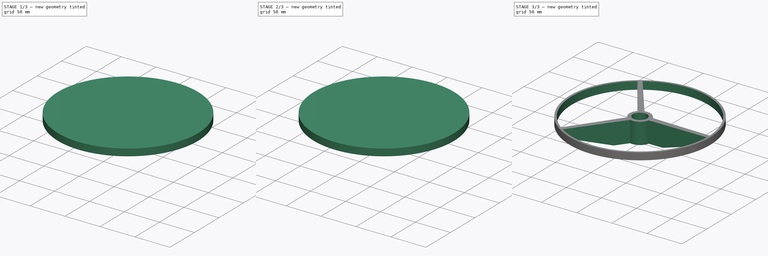
[diagram: build sequence overview — one tinted view per stage of 3, left to right]
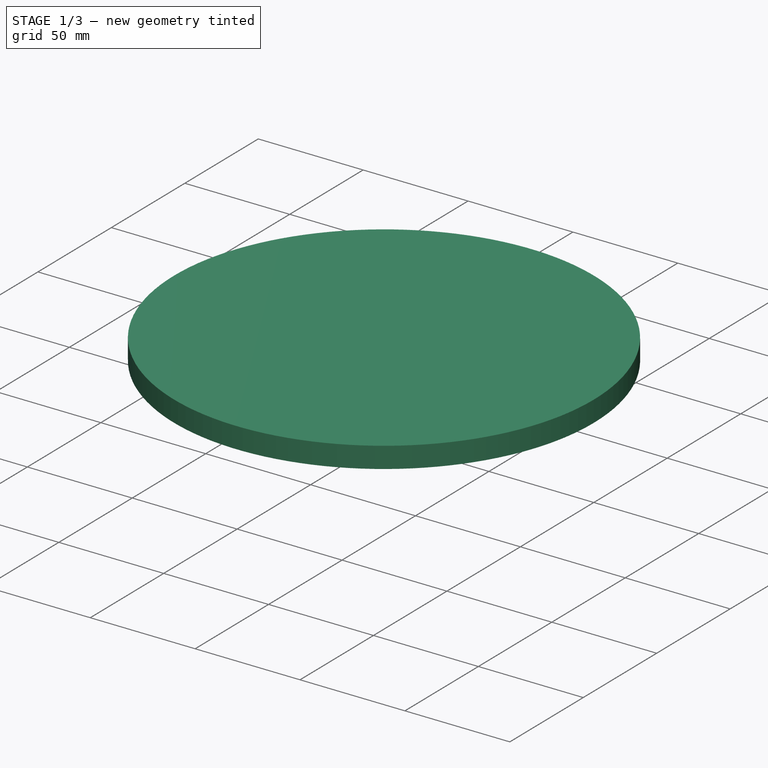
[diagram: stage 1 of 3 — iso view after this stage's code; geometry added in this stage tinted green]
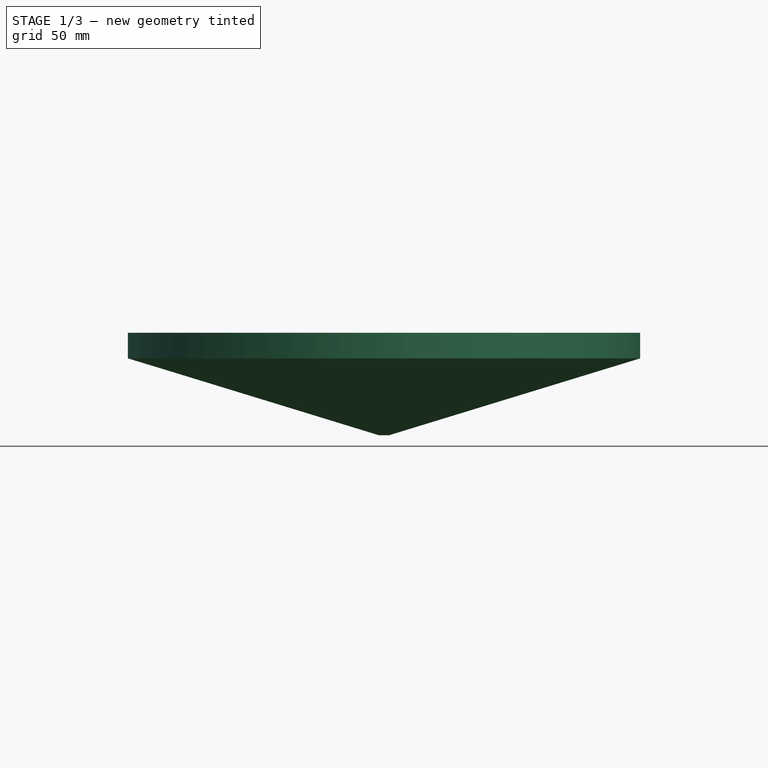
[diagram: stage 1 of 3 — front view after this stage's code; geometry added in this stage tinted green]
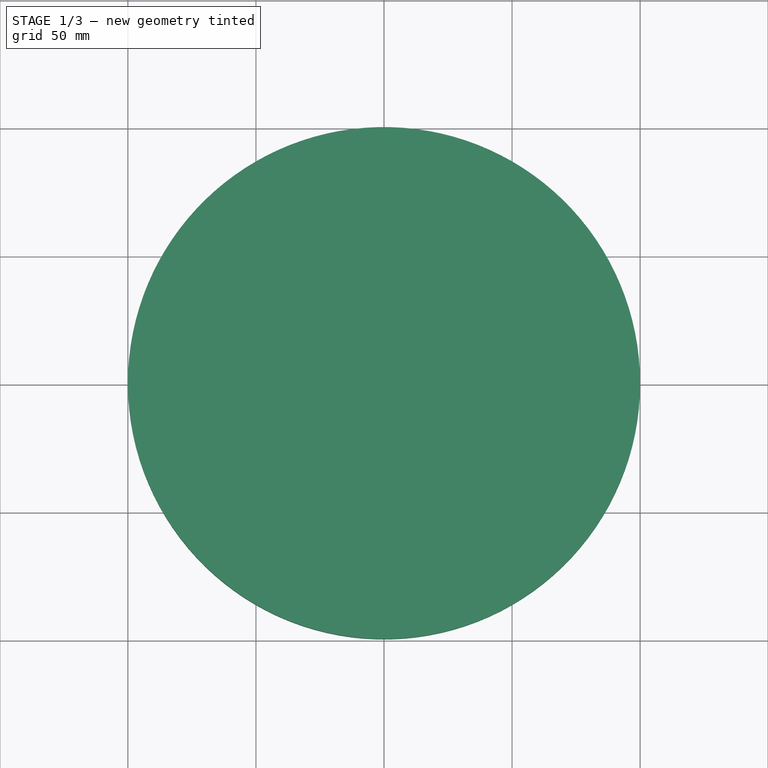
[diagram: stage 1 of 3 — top view after this stage's code; geometry added in this stage tinted green]
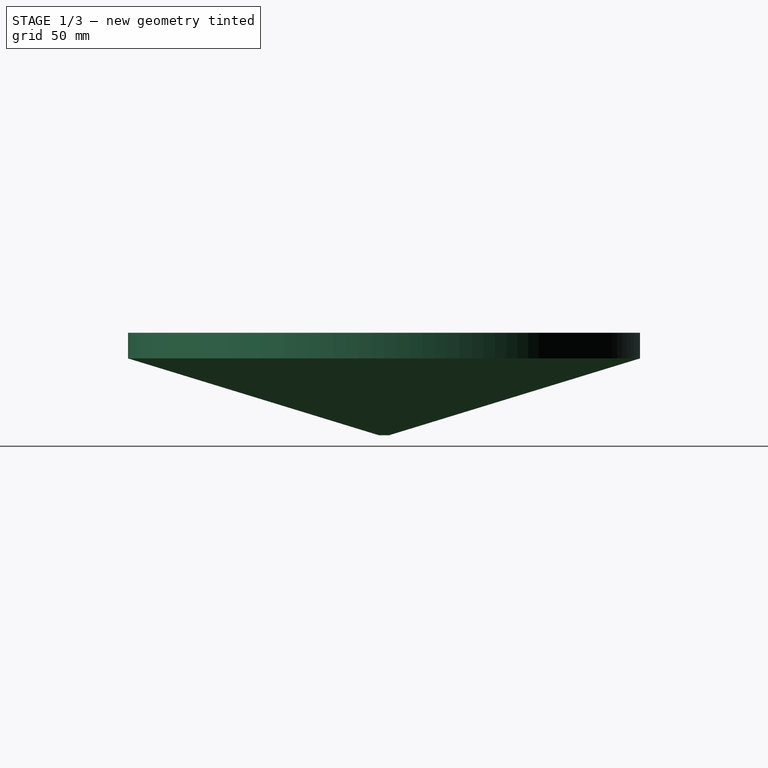
[diagram: stage 1 of 3 — right view after this stage's code; geometry added in this stage tinted green]
FCSTD DOCUMENT  (FreeCAD 0.19R23074 (Git))
Label: base2
License: All rights reserved
LicenseURL: http://en.wikipedia.org/wiki/All_rights_reserved
objects: Sketcher::SketchObject×1, PartDesign::Pad×1, PartDesign::Body×1, Part::Cylinder×1, Part::Cone×1, Part::MultiFuse×1, Part::MultiCommon×1
note: 8 computed .brp shape members not serialized (recipe doc carries the construction recipe); baked Part::Feature solids carry a one-line shape summary decoded from their .brp

FEATURE [PartDesign::Body] Body
  Group = -> [Sketch,Pad]
  Origin = -> Origin
  Tip = -> Pad
FEATURE [Part::Cylinder] Cylinder
  Angle = 360
  AttacherType = Attacher::AttachEngine3D
  Height = 10
  Radius = 100
FEATURE [Part::Cone] Cone
  Angle = 360
  AttacherType = Attacher::AttachEngine3D
  Height = 30
  Placement = pos=(0,0,-30) rot=(0,0.668965,0.743294;0rad)
  Radius1 = 2
  Radius2 = 100
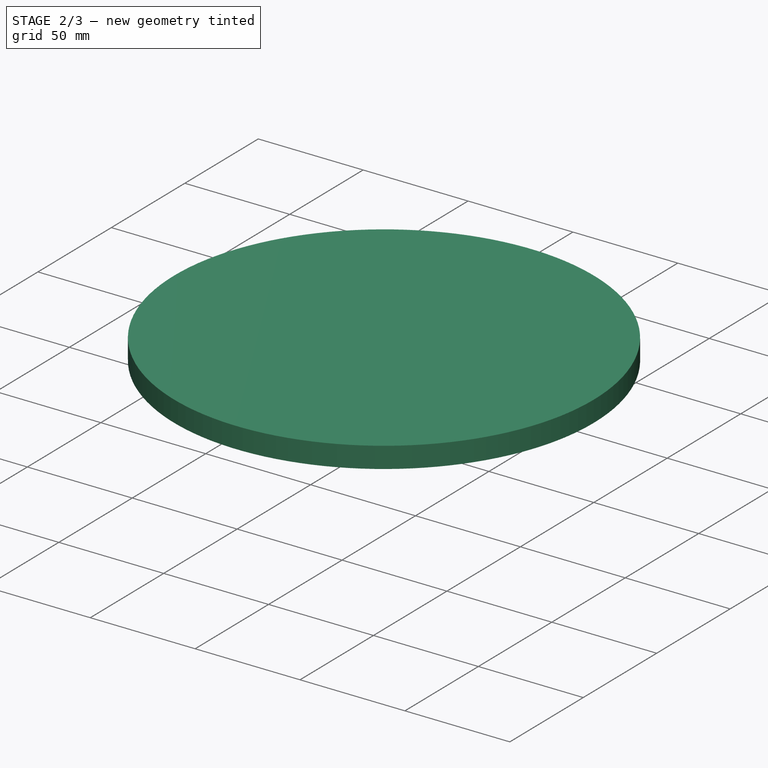
[diagram: stage 2 of 3 — iso view after this stage's code; geometry added in this stage tinted green]
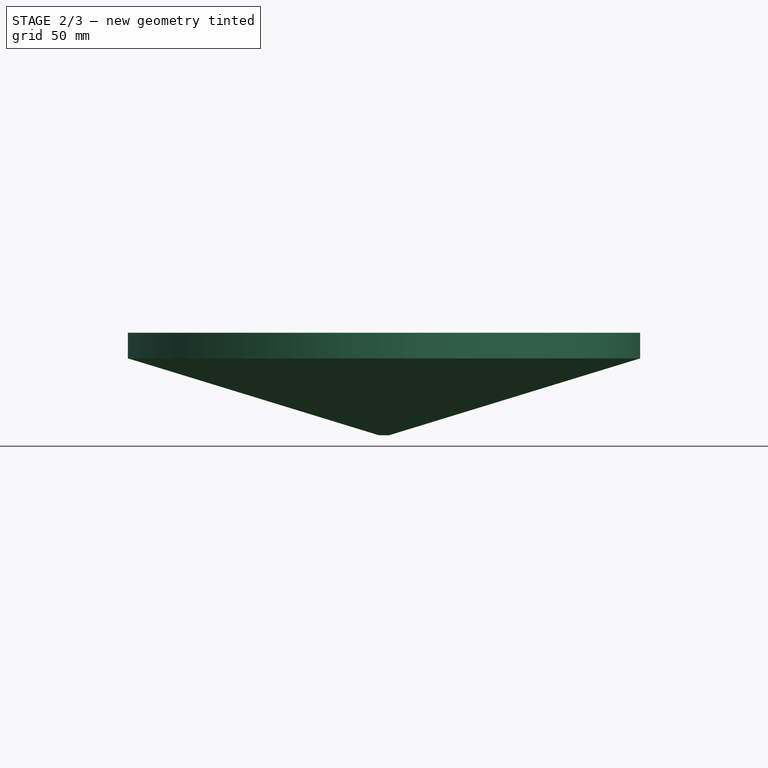
[diagram: stage 2 of 3 — front view after this stage's code; geometry added in this stage tinted green]
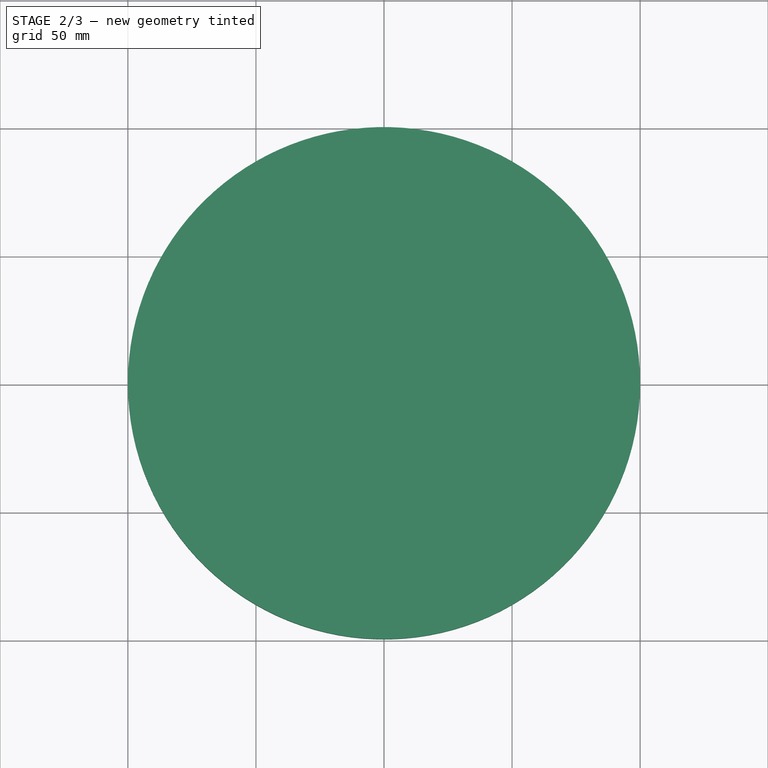
[diagram: stage 2 of 3 — top view after this stage's code; geometry added in this stage tinted green]
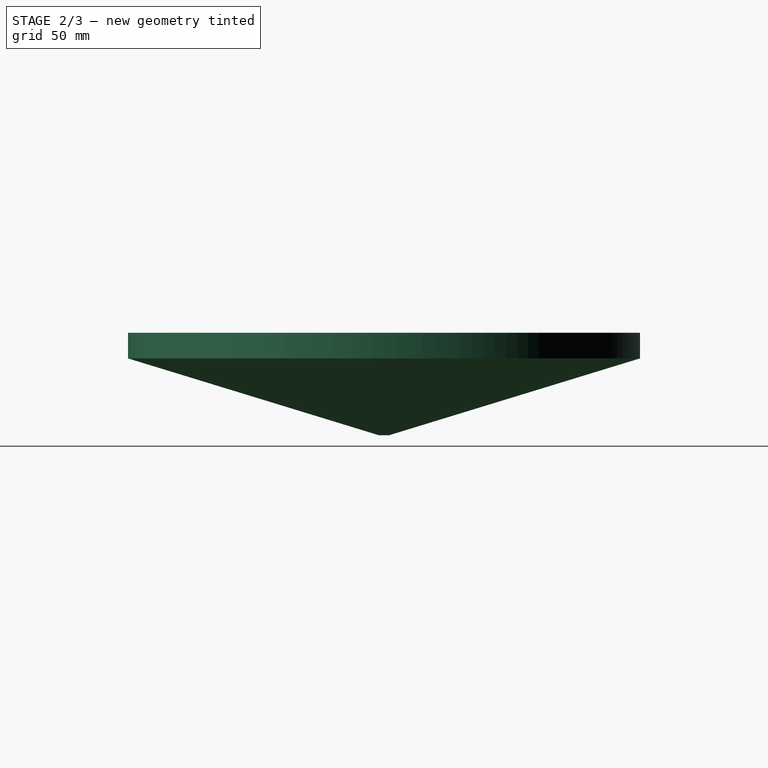
[diagram: stage 2 of 3 — right view after this stage's code; geometry added in this stage tinted green]
FEATURE [Part::MultiFuse] Fusion
  Placement = pos=(0,0,20) rot=(0,0,1;0rad)
  Shapes = -> [Cylinder,Cone]
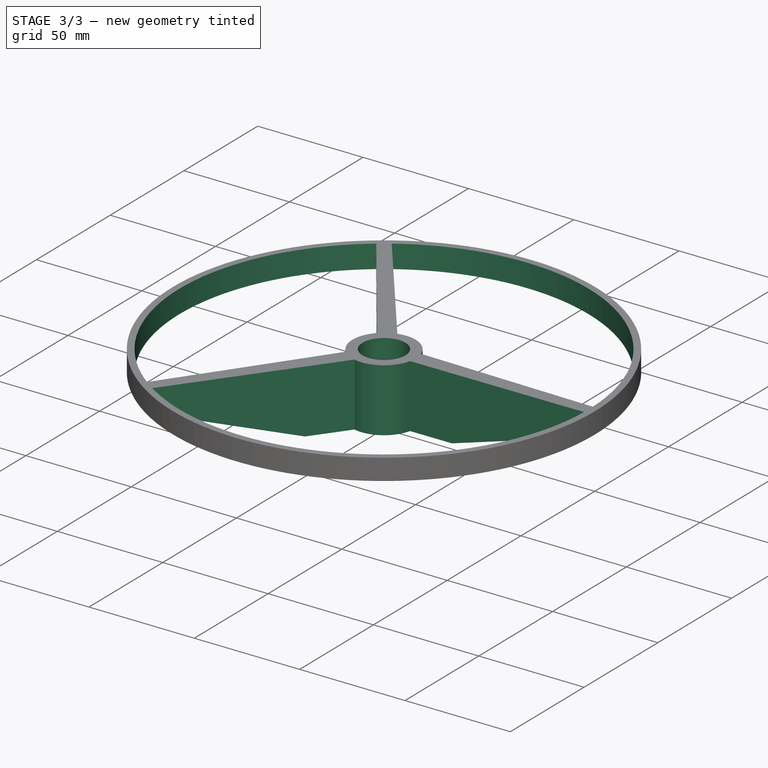
[diagram: stage 3 of 3 — iso view after this stage's code; geometry added in this stage tinted green]
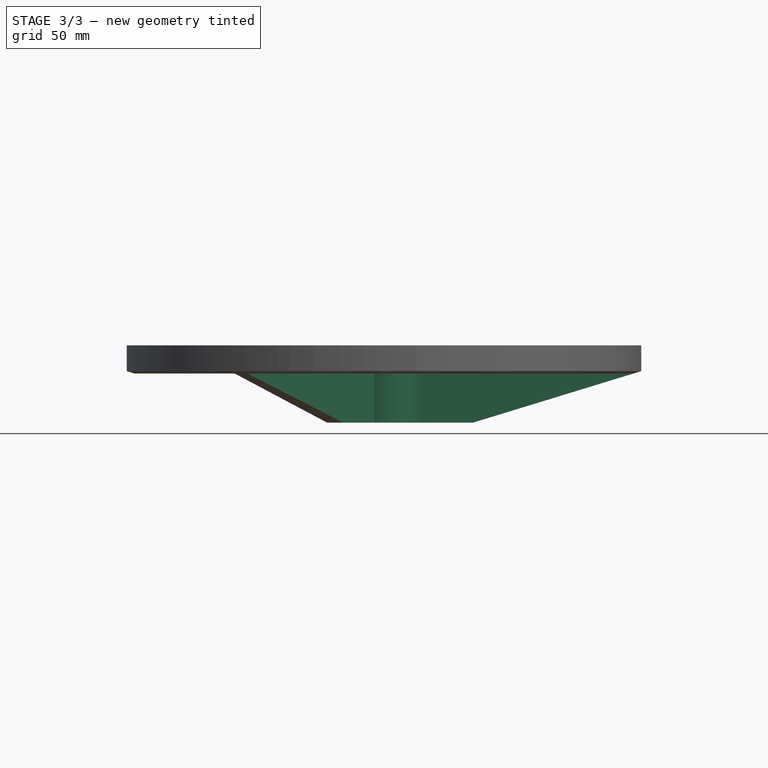
[diagram: stage 3 of 3 — front view after this stage's code; geometry added in this stage tinted green]
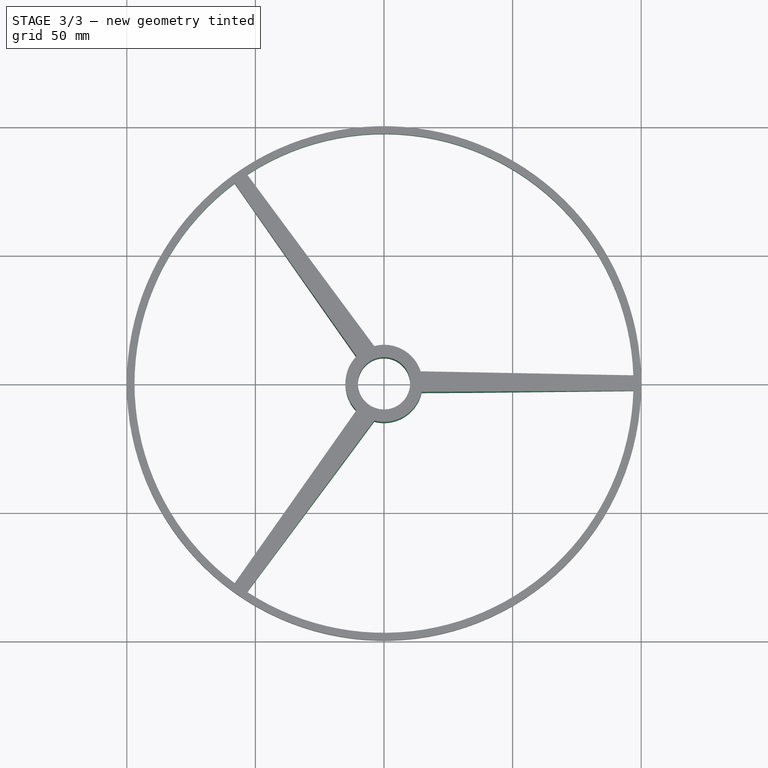
[diagram: stage 3 of 3 — top view after this stage's code; geometry added in this stage tinted green]
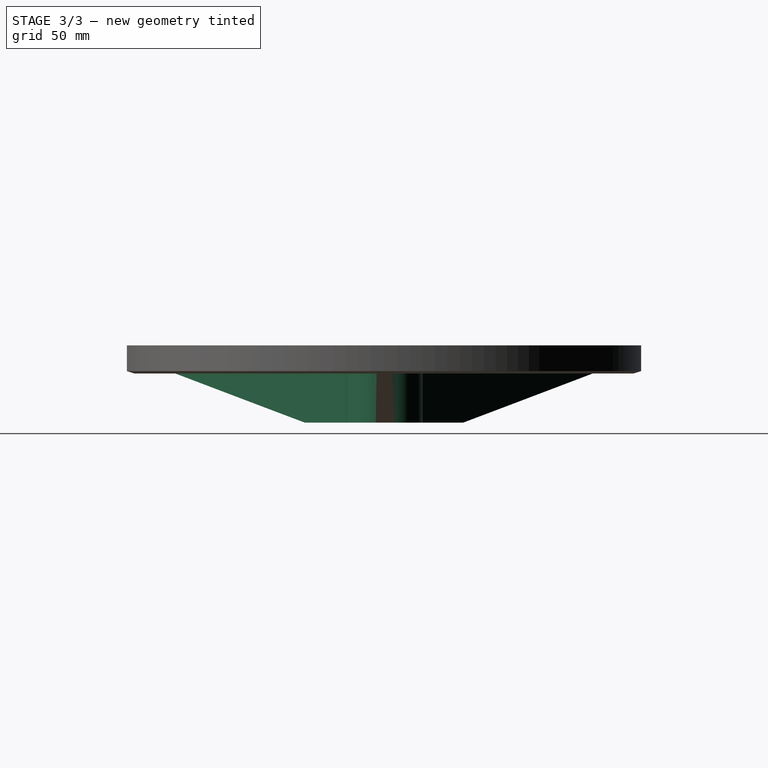
[diagram: stage 3 of 3 — right view after this stage's code; geometry added in this stage tinted green]
FEATURE [Sketcher::SketchObject] Sketch
  MapMode = 5
  Support = -> [XY_Plane]
  sketch-geometry (14):
    g0: Circle CenterX=0 CenterY=0 CenterZ=0 NormalX=0 NormalY=0 NormalZ=1 AngleXU=0 Radius=100
    g1: ArcOfCircle CenterX=0 CenterY=0 CenterZ=0 NormalX=0 NormalY=0 NormalZ=1 AngleXU=0 Radius=97 StartAngle=0.0321847 EndAngle=2.15082
    g2: Circle CenterX=0 CenterY=0 CenterZ=0 NormalX=0 NormalY=0 NormalZ=1 AngleXU=0 Radius=10.15
    g3: ArcOfCircle CenterX=0 CenterY=0 CenterZ=0 NormalX=0 NormalY=0 NormalZ=1 AngleXU=0 Radius=15 StartAngle=0.316742 EndAngle=1.82768
    g4: LineSegment StartX=14.2538 StartY=4.67208 StartZ=0 EndX=96.9498 EndY=3.12138 EndZ=0
    g5: LineSegment StartX=14.6282 StartY=-3.31916 StartZ=0 EndX=96.9573 EndY=-2.87862 EndZ=0
    g6: LineSegment StartX=-3.811 StartY=-14.5078 StartZ=0 EndX=-53.1601 EndY=-81.1357 EndZ=0
    g7: LineSegment StartX=-10.7263 StartY=-10.4855 StartZ=0 EndX=-58.0747 EndY=-77.6938 EndZ=0
    g8: ArcOfCircle CenterX=0 CenterY=0 CenterZ=0 NormalX=0 NormalY=0 NormalZ=1 AngleXU=0 Radius=15 StartAngle=4.45551 EndAngle=6.06006
    g9: ArcOfCircle CenterX=0 CenterY=0 CenterZ=0 NormalX=0 NormalY=0 NormalZ=1 AngleXU=0 Radius=97 StartAngle=4.13237 EndAngle=6.2535
    g10: LineSegment StartX=-3.811 StartY=14.5078 StartZ=0 EndX=-53.1601 EndY=81.1357 EndZ=0
    g11: LineSegment StartX=-10.7263 StartY=10.4855 StartZ=0 EndX=-58.0747 EndY=77.6938 EndZ=0
    g12: ArcOfCircle CenterX=0 CenterY=0 CenterZ=0 NormalX=0 NormalY=0 NormalZ=1 AngleXU=0 Radius=97 StartAngle=2.21268 EndAngle=4.0705
    g13: ArcOfCircle CenterX=0 CenterY=0 CenterZ=0 NormalX=0 NormalY=0 NormalZ=1 AngleXU=0 Radius=15 StartAngle=2.36754 EndAngle=3.91564
  constraints (34):
    c: Coincident(g0,g-1)
    c: Radius(g0) = 100
    c: Coincident(g1,g0)
    c: Radius(g1) = 97
    c: Coincident(g2,g0)
    c: Radius(g2) = 10.15
    c: Coincident(g3,g0)
    c: Radius(g3) = 15
    c: Coincident(g3,g4)
    c: Coincident(g8,g5)
    c: Coincident(g1,g4)
    c: Coincident(g9,g5)
    c: Coincident(g13,g7)
    c: Coincident(g8,g6)
    c: Coincident(g3,g8)
    c: Coincident(g12,g7)
    c: Coincident(g9,g6)
    c: Coincident(g1,g9)
    c: Distance(g13,g6) = 8
    c: Distance(g3,g5) = 8
    c: Distance(g6,g12) = 6
    c: Equal(g1,g12)
    c: Coincident(g1,g10)
    c: Coincident(g12,g11)
    c: Coincident(g1,g12)
    c: Equal(g3,g13)
    c: Coincident(g3,g10)
    c: Coincident(g13,g11)
    c: Coincident(g3,g13)
    c: Distance(g11,g3) = 8
    c: Distance(g1,g11) = 6
    c: Distance(g5,g1) = 6
    c: Symmetric(g3,g6,g-1)
    c: Symmetric(g1,g6,g-1)
FEATURE [PartDesign::Pad] Pad
  Direction = (1,1,1)
  Length = 40
  Length2 = 20
  Profile = -> Sketch
  Type = 0
FEATURE [Part::MultiCommon] Common
  Shapes = -> [Body,Fusion]
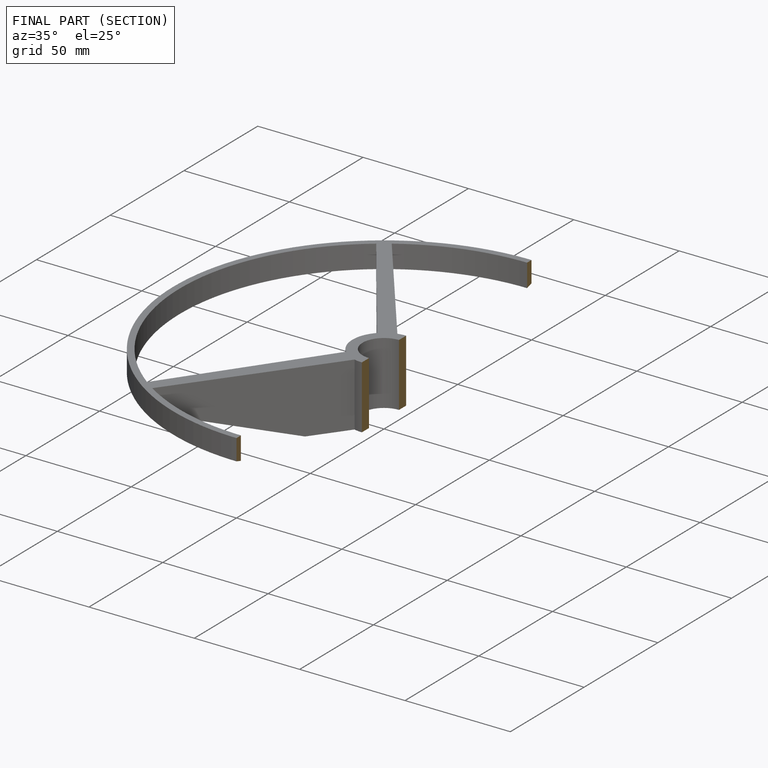
[diagram: finished part — half-section view (interior)]
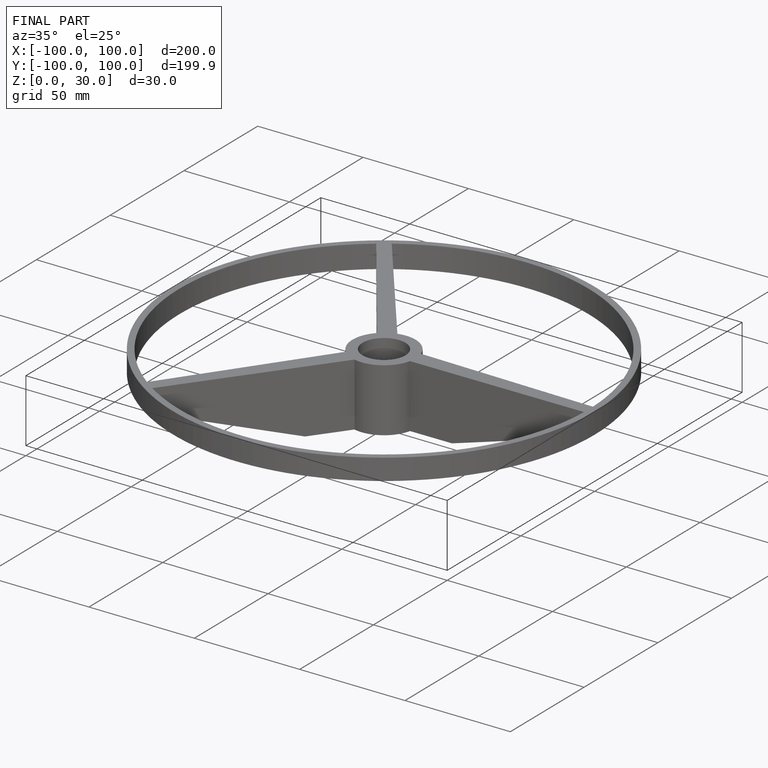
[diagram: finished part — iso view with bounding-box wireframe]
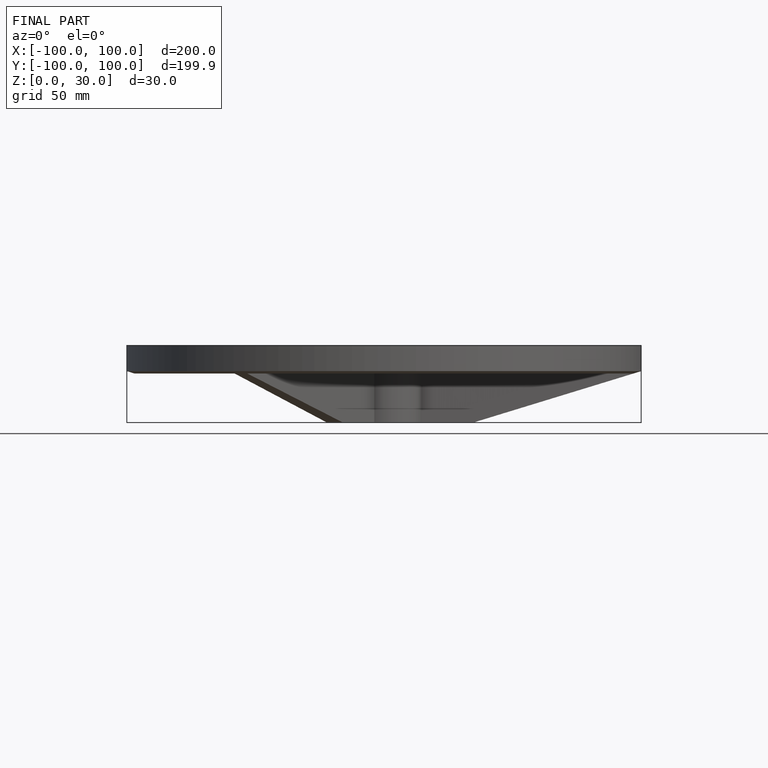
[diagram: finished part — front view with bounding-box wireframe]
